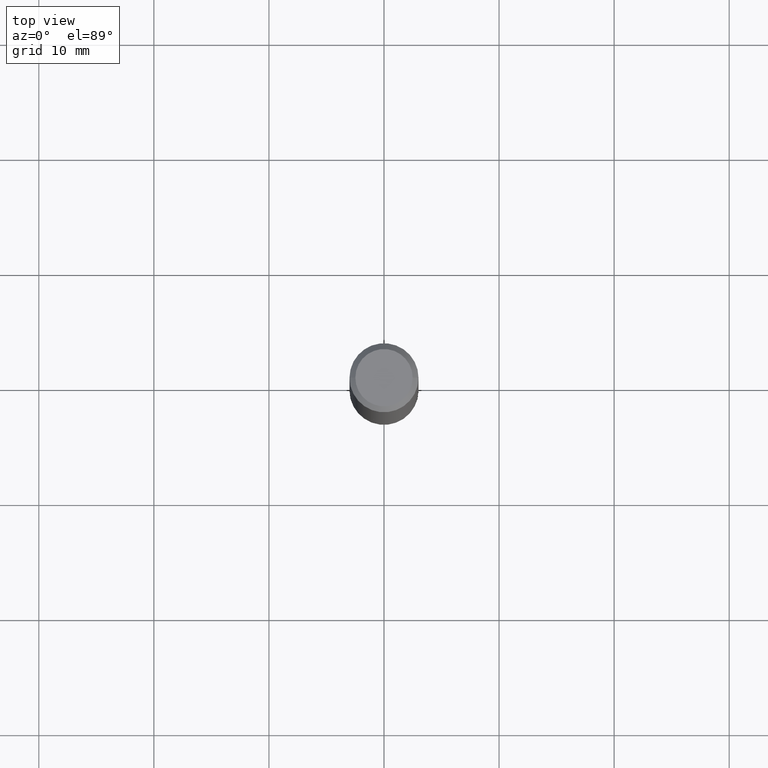
[diagram: clean part render]
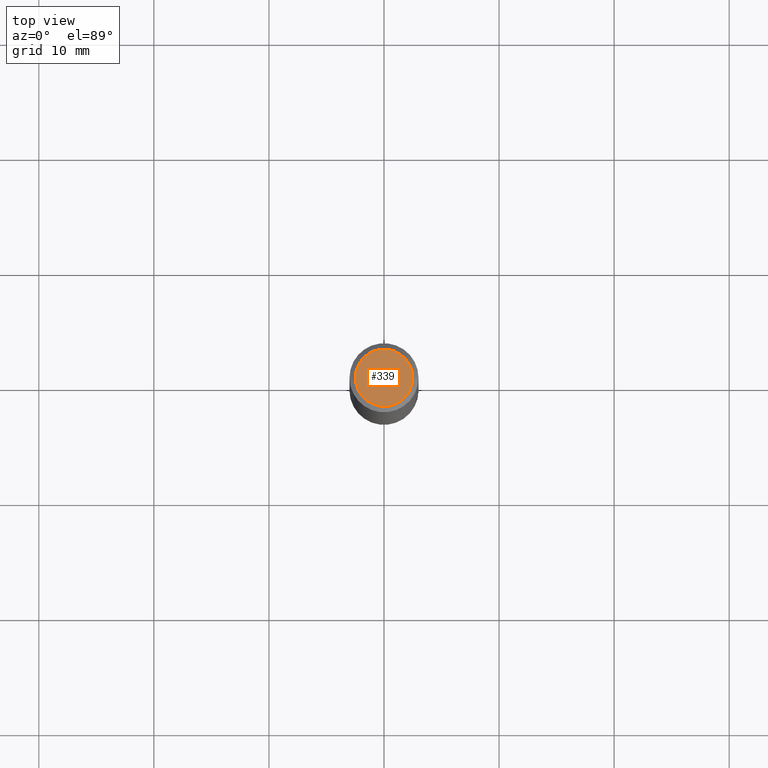
[diagram: same view with one face highlighted and labeled with its STEP entity id]
A machine part, top view. The second image highlights one B-rep face of the part: STEP entity #339.
In plain terms, the highlighted planar face has unit normal (0, -0, -1).
Its self-contained STEP definition (entity closure, byte-faithful):
#1 = ORIENTED_EDGE ( 'NONE', *, *, #19, .T. ) ;
#17 = CIRCLE ( 'NONE', #227, 0.09809999999999977072 ) ;
#18 = CARTESIAN_POINT ( 'NONE',  ( 1.148236555768741665E-45, -1.639377487418492057E-31, -4.695363739110452099E-17 ) ) ;
#19 = EDGE_CURVE ( 'NONE', #294, #112, #90, .T. ) ;
#23 = CARTESIAN_POINT ( 'NONE',  ( 1.148236555768741665E-45, -1.639377487418492057E-31, -4.695363739110452099E-17 ) ) ;
#59 = DIRECTION ( 'NONE',  ( 2.438088387897960049E-29, -3.491481338843145188E-15, -1.000000000000000000 ) ) ;
#63 = DIRECTION ( 'NONE',  ( -2.445468806185136597E-29, 3.491481338843145583E-15, 1.000000000000000000 ) ) ;
#83 = CARTESIAN_POINT ( 'NONE',  ( 6.850286386810210746E-16, 0.09809999999999977072, -3.659911380360640180E-16 ) ) ;
#90 = CIRCLE ( 'NONE', #182, 0.09809999999999977072 ) ;
#109 = DIRECTION ( 'NONE',  ( 1.000000000000000000, -6.982962677686266711E-15, 4.877161320636778563E-29 ) ) ;
#112 = VERTEX_POINT ( 'NONE', #163 ) ;
#130 = FACE_OUTER_BOUND ( 'NONE', #224, .T. ) ;
#163 = CARTESIAN_POINT ( 'NONE',  ( -0.09809999999999977072, 7.199434520694523292E-16, -4.695363739110943904E-17 ) ) ;
#182 = AXIS2_PLACEMENT_3D ( 'NONE', #23, #229, #109 ) ;
#193 = PLANE ( 'NONE',  #278 ) ;
#199 = DIRECTION ( 'NONE',  ( -1.000000000000000000, 6.982962677686265922E-15, -4.876176775795935793E-29 ) ) ;
#201 = ORIENTED_EDGE ( 'NONE', *, *, #254, .T. ) ;
#203 = CARTESIAN_POINT ( 'NONE',  ( 0.09809999999999977072, -7.765346469475328709E-16, -4.695363739109941188E-17 ) ) ;
#224 = EDGE_LOOP ( 'NONE', ( #201, #1 ) ) ;
#227 = AXIS2_PLACEMENT_3D ( 'NONE', #18, #63, #268 ) ;
#229 = DIRECTION ( 'NONE',  ( -2.445468806185136597E-29, 3.491481338843145583E-15, 1.000000000000000000 ) ) ;
#254 = EDGE_CURVE ( 'NONE', #112, #294, #17, .T. ) ;
#268 = DIRECTION ( 'NONE',  ( 1.000000000000000000, -6.982962677686266711E-15, 4.877161320636778563E-29 ) ) ;
#278 = AXIS2_PLACEMENT_3D ( 'NONE', #83, #59, #199 ) ;
#294 = VERTEX_POINT ( 'NONE', #203 ) ;
#339 = ADVANCED_FACE ( 'NONE', ( #130 ), #193, .F. ) ;